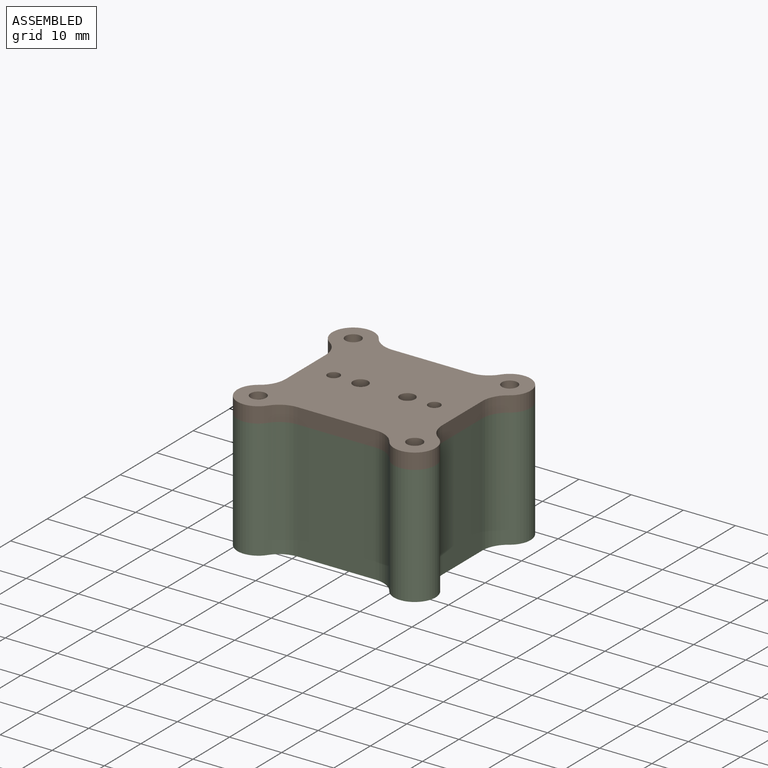
[diagram: assembled view]
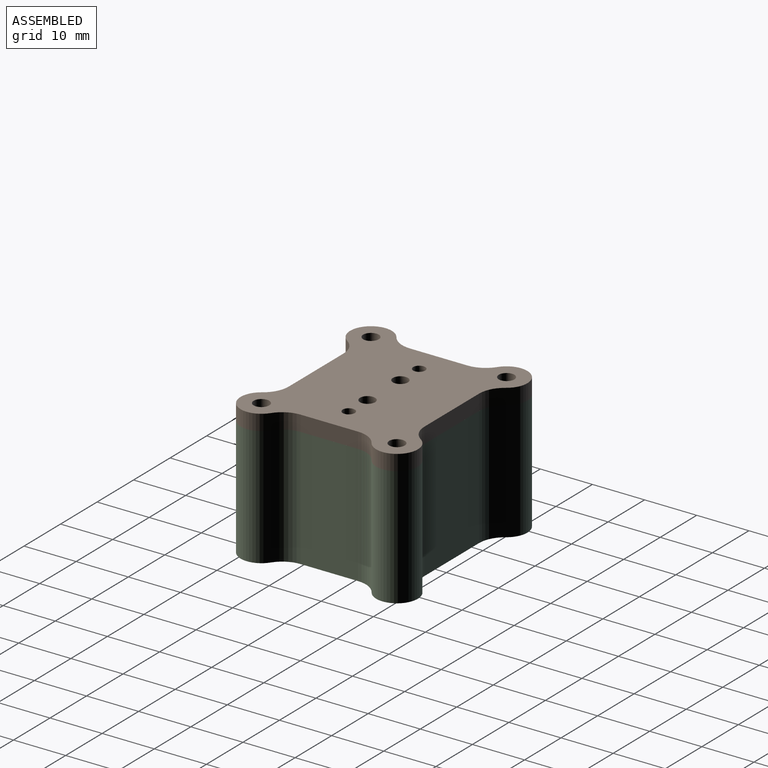
[diagram: assembled view, second angle]
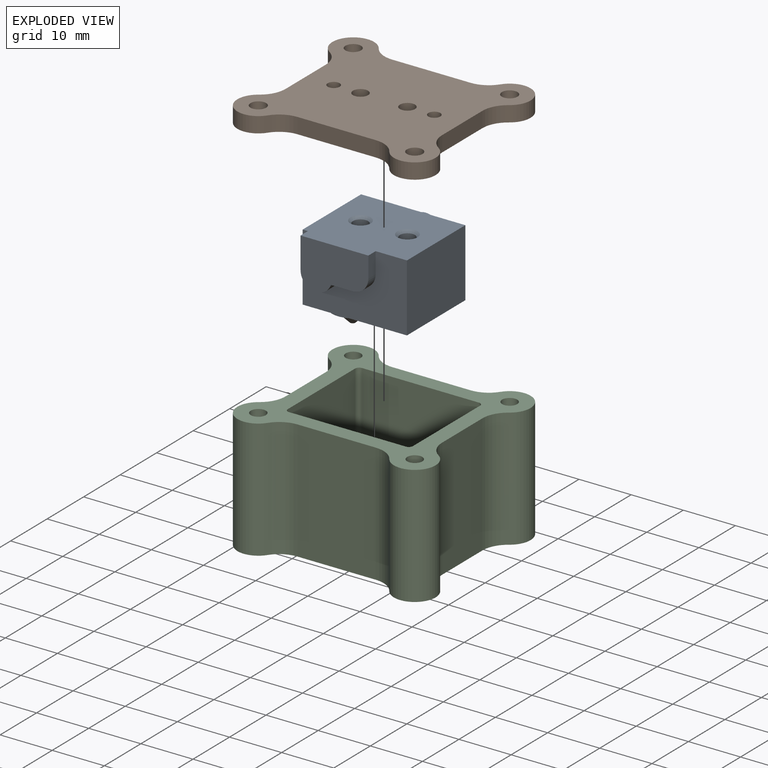
[diagram: exploded view]
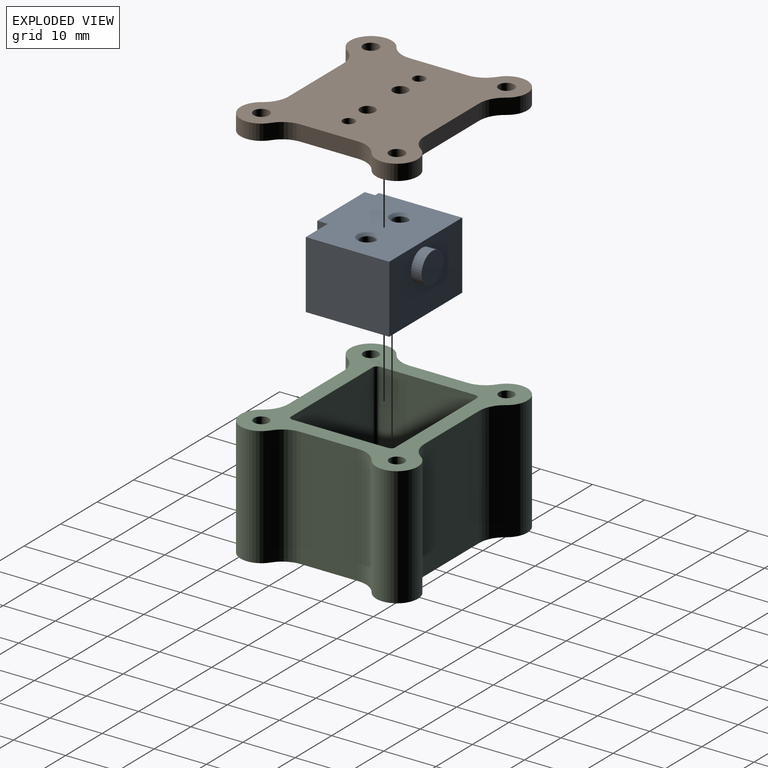
[diagram: exploded view, second angle]
ASSEMBLY  parts=3 mates=2
PART A: 24 faces, bbox 20x20x18 mm
  f0: plane 20x13mm, normal (0,-1,0), area 162.7mm2, adj f5,f7,f8,f9,f10,f11,f12,f13
  f1: plane 1x1mm, normal (0,0,-1), area 0.8mm2, adj f2
  f2: cone r=0.5mm half-angle=45deg, axis (0,0,1), area 38.9mm2, adj f1,f3
  f3: plane 8x8mm, normal (0,0,-1), area 22mm2, adj f2,f4
  f4: cylinder r=4mm len=8mm, axis (0,0,1), area 62.8mm2, adj f3,f5
  f5: plane 20x16mm, normal (0,0,-1), area 269.7mm2, adj f0,f4,f6,f7,f8
  f6: plane 20x13mm, normal (0,1,0), area 231.7mm2, adj f5,f7,f8,f9,f16
  f7: plane 16x13mm, normal (-1,0,0), area 208mm2, adj f0,f5,f6,f9
  f8: plane 16x13mm, normal (1,0,0), area 208mm2, adj f0,f5,f6,f9
  f9: plane 20x18mm, normal (0,0,1), area 322.1mm2, adj f0,f6,f7,f8,f11,f12,f15,f22
  f10: cylinder r=3mm len=3.01mm, axis (0,1,0), area 9.4mm2, adj f0,f11,f14,f15
  f11: plane 3.99x2mm, normal (1,0,0), area 8mm2, adj f0,f9,f10,f15
  f12: plane 6x2mm, normal (-1,0,0), area 12mm2, adj f0,f9,f13,f15
  f13: cylinder r=3mm len=5.83mm, axis (0,1,0), area 16.8mm2, adj f0,f12,f14,f15
  f14: plane 4.17x2mm, normal (0,0,-1), area 8.3mm2, adj f0,f10,f13,f15
  f15: plane 13x9mm, normal (0,-1,0), area 97.3mm2, adj f9,f10,f11,f12,f13,f14
  f16: cylinder r=3mm len=6mm, axis (0,-1,0), area 37.7mm2, adj f6,f17
  f17: plane 6x6mm, normal (0,1,0), area 28.3mm2, adj f16
  f18: cylinder r=1.45mm len=5.5mm, axis (0,0,1), area 50.1mm2, adj f19,f23
  f19: plane 2.9x2.9mm, normal (0,0,1), area 6.6mm2, adj f18
  f20: cylinder r=1.45mm len=5.5mm, axis (0,0,1), area 50.1mm2, adj f21,f22
  f21: plane 2.9x2.9mm, normal (0,0,1), area 6.6mm2, adj f20
  f22: cone r=1.45mm half-angle=45deg, axis (0,0,1), area 7.6mm2, adj f9,f20
  f23: cone r=1.45mm half-angle=45deg, axis (0,0,1), area 7.6mm2, adj f9,f18
PART B: 35 faces, bbox 34x38x5 mm
  f0: plane 15x2mm, normal (1,0,0), area 30mm2, adj f1,f9,f10,f11
  f1: cylinder r=1mm len=2mm, axis (0,0,-1), area 3.1mm2, adj f0,f2,f10,f11
  f2: plane 11x2mm, normal (0,1,0), area 22mm2, adj f1,f3,f10,f11
  f3: cylinder r=1mm len=2mm, axis (0,0,-1), area 3.1mm2, adj f2,f4,f10,f11
  f4: plane 15x2mm, normal (-1,0,0), area 30mm2, adj f3,f5,f10,f11
  f5: cylinder r=1mm len=2mm, axis (0,0,-1), area 3.1mm2, adj f4,f6,f10,f11
  f6: plane 11x2mm, normal (0,-1,0), area 22mm2, adj f5,f9,f10,f11
  f7: cylinder r=1.45mm len=5mm, axis (0,0,-1), area 45.6mm2, adj f10,f16
  f8: cylinder r=1.45mm len=5mm, axis (0,0,-1), area 45.6mm2, adj f10,f16
  f9: cylinder r=1mm len=2mm, axis (0,0,-1), area 3.1mm2, adj f0,f6,f10,f11
  f10: plane 17x13mm, normal (0,0,-1), area 206.9mm2, adj f0,f1,f2,f3,f4,f5,f6,f7
  f11: plane 38x34mm, normal (0,0,-1), area 687.9mm2, adj f0,f1,f2,f3,f4,f5,f6,f9
  f12: plane 15.03x3mm, normal (1,0,0), area 45.1mm2, adj f11,f16,f27,f29
  f13: plane 11.03x3mm, normal (0,1,0), area 33.1mm2, adj f11,f16,f25,f28
  f14: plane 15.03x3mm, normal (-1,0,0), area 45.1mm2, adj f11,f16,f26,f31
  f15: plane 11.03x3mm, normal (0,-1,0), area 33.1mm2, adj f11,f16,f30,f32
  f16: plane 38x34mm, normal (0,0,1), area 894.8mm2, adj f7,f8,f12,f13,f14,f15,f17,f18
  f17: cylinder r=4mm len=7.33mm, axis (0,0,1), area 42.4mm2, adj f11,f16,f31,f32
  f18: cylinder r=4mm len=7.33mm, axis (0,0,1), area 42.4mm2, adj f11,f16,f29,f30
  f19: cylinder r=4mm len=7.33mm, axis (0,0,1), area 42.4mm2, adj f11,f16,f27,f28
  f20: cylinder r=4mm len=7.33mm, axis (0,0,1), area 42.4mm2, adj f11,f16,f25,f26
  f21: cylinder r=1.5mm len=3mm, axis (0,0,1), area 28.3mm2, adj f11,f16
  f22: cylinder r=1.5mm len=3mm, axis (0,0,1), area 28.3mm2, adj f11,f16
  f23: cylinder r=1.5mm len=3mm, axis (0,0,1), area 28.3mm2, adj f11,f16
  f24: cylinder r=1.5mm len=3mm, axis (0,0,1), area 28.3mm2, adj f11,f16
  f25: cylinder r=5mm len=4.16mm, axis (0,0,1), area 14.7mm2, adj f11,f13,f16,f20
  f26: cylinder r=5mm len=4.16mm, axis (0,0,1), area 14.7mm2, adj f11,f14,f16,f20
  f27: cylinder r=5mm len=4.16mm, axis (0,0,1), area 14.7mm2, adj f11,f12,f16,f19
  f28: cylinder r=5mm len=4.16mm, axis (0,0,1), area 14.7mm2, adj f11,f13,f16,f19
  f29: cylinder r=5mm len=4.16mm, axis (0,0,1), area 14.7mm2, adj f11,f12,f16,f18
  f30: cylinder r=5mm len=4.16mm, axis (0,0,1), area 14.7mm2, adj f11,f15,f16,f18
  f31: cylinder r=5mm len=4.16mm, axis (0,0,1), area 14.7mm2, adj f11,f14,f16,f17
  f32: cylinder r=5mm len=4.16mm, axis (0,0,1), area 14.7mm2, adj f11,f15,f16,f17
  f33: cylinder r=1.15mm len=3mm, axis (0,0,-1), area 21.7mm2, adj f11,f16
  f34: cylinder r=1.15mm len=3mm, axis (0,0,-1), area 21.7mm2, adj f11,f16
PART C: 51 faces, bbox 38x34x22.9 mm
  f0: plane 38x34mm, normal (0,0,1), area 438.7mm2, adj f1,f2,f3,f4,f6,f7,f8,f9
  f1: plane 22.9x15.03mm, normal (0,1,0), area 344.3mm2, adj f0,f5,f43,f46
  f2: plane 22.9x11.03mm, normal (-1,0,0), area 252.7mm2, adj f0,f5,f45,f48
  f3: plane 22.9x15.03mm, normal (0,-1,0), area 344.3mm2, adj f0,f5,f47,f50
  f4: plane 22.9x11.03mm, normal (1,0,0), area 252.7mm2, adj f0,f5,f44,f49
  f5: plane 38x34mm, normal (0,0,-1), area 918.2mm2, adj f1,f2,f3,f4,f35,f36,f37,f38
  f6: plane 22.4x17.1mm, normal (0,-1,0), area 383mm2, adj f0,f21,f27,f28
  f7: plane 18.4x17.1mm, normal (1,0,0), area 314.6mm2, adj f0,f15,f16,f26,f27,f31,f32
  f8: plane 22.4x17.1mm, normal (0,1,0), area 383mm2, adj f0,f20,f25,f26
  f9: plane 18.4x17.1mm, normal (-1,0,0), area 314.6mm2, adj f0,f20,f21,f22
  f10: plane 22.4x18.4mm, normal (0,0,1), area 277.3mm2, adj f22,f25,f28,f31,f32,f34
  f11: plane 1.16x1.16mm, normal (0,0,1), area 1.1mm2, adj f12
  f12: cone r=0.58mm half-angle=45deg, axis (0,0,1), area 4.7mm2, adj f11,f13
  f13: plane 10x10mm, normal (0,0,1), area 74.2mm2, adj f12,f14
  f14: torus R=5mm, axis (0,0,-1), area 49.3mm2, adj f13,f18,f19,f34
  f15: bspline ~4.34x0.77mm, area 2.8mm2, adj f7,f16,f32,f33
  f16: bspline ~4.34x0.77mm, area 2.8mm2, adj f7,f15,f17,f31
  f17: bspline ~4.34x1.17mm, area 2.1mm2, adj f16,f18,f31,f34
  f18: bspline ~3.97x1.43mm, area 2.1mm2, adj f14,f17,f19,f34
  f19: bspline ~3.97x1.43mm, area 2.1mm2, adj f14,f18,f33,f34
  f20: cylinder r=0.8mm len=17.1mm, axis (0,0,-1), area 21.5mm2, adj f0,f8,f9,f23
  f21: cylinder r=0.8mm len=17.1mm, axis (0,0,1), area 21.5mm2, adj f0,f6,f9,f24
  f22: cylinder r=0.8mm len=18.4mm, axis (0,-1,0), area 23.1mm2, adj f9,f10,f23,f24
  f23: sphere r=0.8mm, area 1mm2, adj f20,f22,f25
  f24: sphere r=0.8mm, area 0.6mm2, adj f21,f22,f28
  f25: cylinder r=0.8mm len=22.4mm, axis (-1,0,0), area 28.1mm2, adj f8,f10,f23,f29
  f26: cylinder r=0.8mm len=17.1mm, axis (0,0,1), area 21.5mm2, adj f0,f7,f8,f29
  f27: cylinder r=0.8mm len=17.1mm, axis (0,0,-1), area 21.5mm2, adj f0,f6,f7,f30
  f28: cylinder r=0.8mm len=22.4mm, axis (1,0,0), area 28.1mm2, adj f6,f10,f24,f30
  f29: sphere r=0.8mm, area 1mm2, adj f25,f26,f31
  f30: sphere r=0.8mm, area 1.4mm2, adj f27,f28,f32
  f31: cylinder r=0.8mm len=4.92mm, axis (0,1,0), area 6.1mm2, adj f7,f10,f16,f17,f29
  f32: cylinder r=0.8mm len=4.92mm, axis (0,1,0), area 6.1mm2, adj f7,f10,f15,f30,f33
  f33: bspline ~4.34x1.17mm, area 2.1mm2, adj f15,f19,f32,f34
  f34: torus R=6.77mm, axis (0,0,1), area 34.7mm2, adj f10,f14,f17,f18,f19,f33
  f35: cylinder r=4mm len=22.9mm, axis (0,0,-1), area 323.7mm2, adj f0,f5,f43,f44
  f36: cylinder r=4mm len=22.9mm, axis (0,0,-1), area 323.7mm2, adj f0,f5,f49,f50
  f37: cylinder r=4mm len=22.9mm, axis (0,0,-1), area 323.7mm2, adj f0,f5,f47,f48
  f38: cylinder r=4mm len=22.9mm, axis (0,0,-1), area 323.7mm2, adj f0,f5,f45,f46
  f39: cylinder r=1.45mm len=22.9mm, axis (0,0,-1), area 208.6mm2, adj f0,f5
  f40: cylinder r=1.45mm len=22.9mm, axis (0,0,-1), area 208.6mm2, adj f0,f5
  f41: cylinder r=1.45mm len=22.9mm, axis (0,0,-1), area 208.6mm2, adj f0,f5
  f42: cylinder r=1.45mm len=22.9mm, axis (0,0,-1), area 208.6mm2, adj f0,f5
  f43: cylinder r=5mm len=22.9mm, axis (0,0,-1), area 112.4mm2, adj f0,f1,f5,f35
  f44: cylinder r=5mm len=22.9mm, axis (0,0,-1), area 112.4mm2, adj f0,f4,f5,f35
  f45: cylinder r=5mm len=22.9mm, axis (0,0,-1), area 112.4mm2, adj f0,f2,f5,f38
  f46: cylinder r=5mm len=22.9mm, axis (0,0,-1), area 112.4mm2, adj f0,f1,f5,f38
  f47: cylinder r=5mm len=22.9mm, axis (0,0,-1), area 112.4mm2, adj f0,f3,f5,f37
  f48: cylinder r=5mm len=22.9mm, axis (0,0,-1), area 112.4mm2, adj f0,f2,f5,f37
  f49: cylinder r=5mm len=22.9mm, axis (0,0,-1), area 112.4mm2, adj f0,f4,f5,f36
  f50: cylinder r=5mm len=22.9mm, axis (0,0,-1), area 112.4mm2, adj f0,f3,f5,f36
PLACE A t=(0.24,33.42,40.16)mm
PLACE B rot(axis=(0,0,1),90deg) t=(3.96,33.42,53.16)mm
PLACE C t=(0.24,33.42,40.26)mm fixed
MATE cylindrical A.f20 <-> B.f8  axis (0,0,1) through (1.74,33.42,53.16)mm
MATE planar A.f2 <-> C.f12  axis (0,0,1) through (0.24,33.42,35.16)mm
